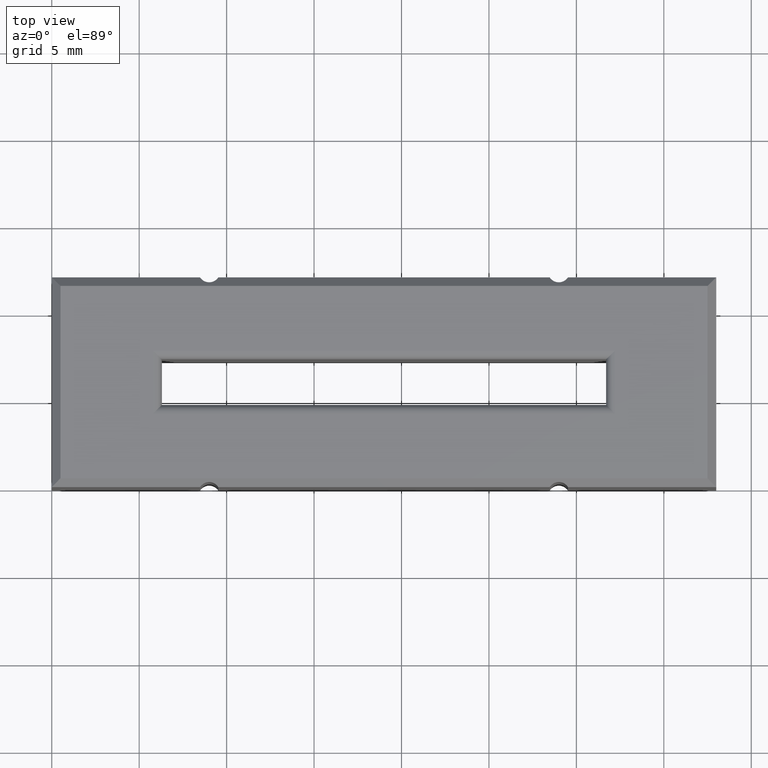
[diagram: clean part render]
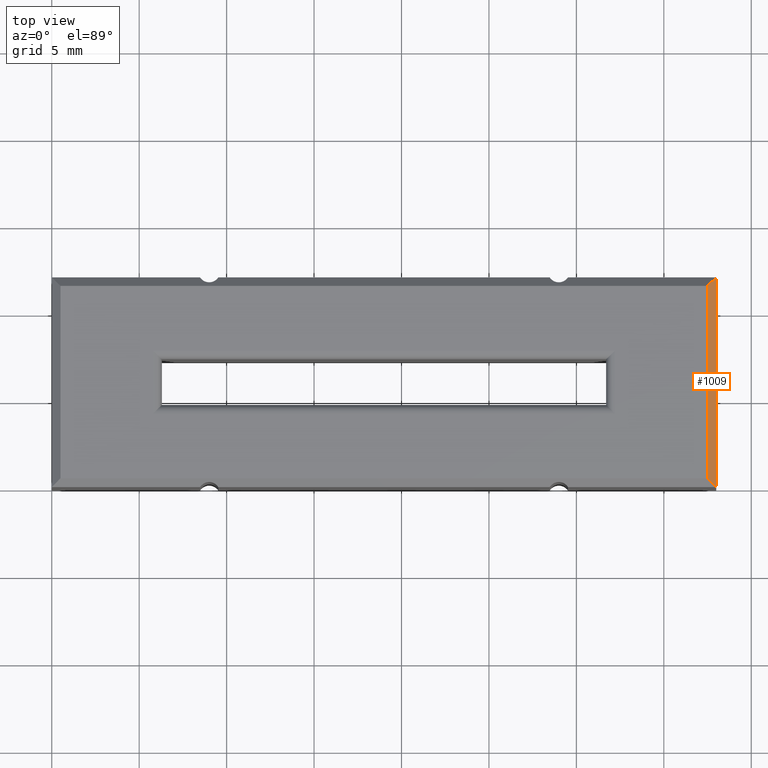
[diagram: same view with one face highlighted and labeled with its STEP entity id]
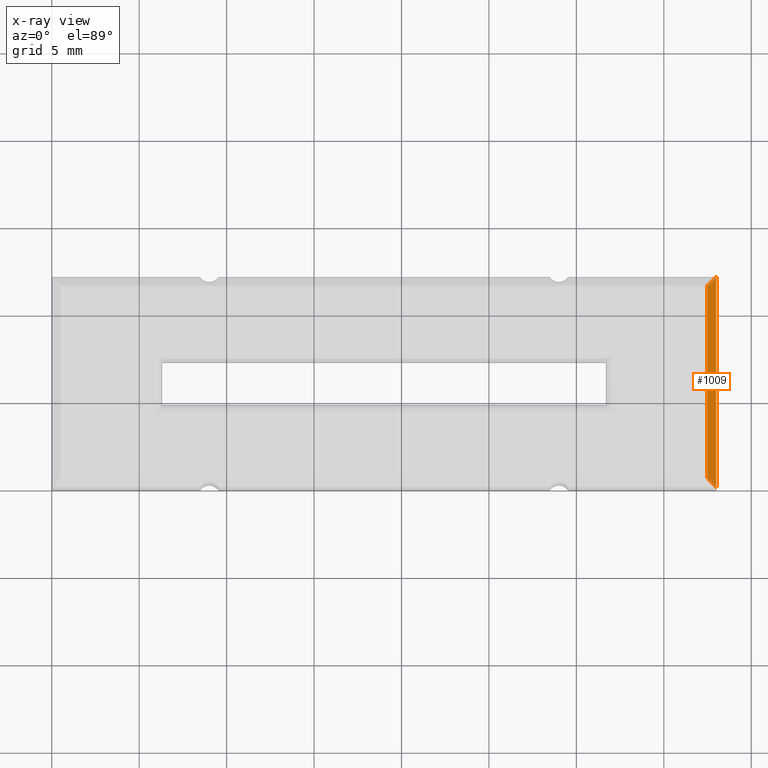
[diagram: x-ray of the same camera — body ghosted, the highlighted face saturated]
A machine part, top view. The second image highlights one B-rep face of the part: STEP entity #1009.
The next image is the same camera in x-ray: the body ghosted, the highlighted face saturated — about 0% of this face is hidden behind the body in this view.
In plain terms, the highlighted planar face has unit normal (-0.7071, 0, -0.7071).
Its self-contained STEP definition (entity closure, byte-faithful):
#148 = CARTESIAN_POINT ( 'NONE',  ( 37.50000000000000000, 0.000000000000000000, 12.69999999999999929 ) ) ;
#203 = CARTESIAN_POINT ( 'NONE',  ( 37.50000000000000000, 11.50000000000000000, 12.69999999999999929 ) ) ;
#430 = CARTESIAN_POINT ( 'NONE',  ( 25.00000000000006040, -0.9999999999999453770, 25.20000000000002771 ) ) ;
#523 = EDGE_CURVE ( 'NONE', #2996, #2002, #1898, .T. ) ;
#752 = VECTOR ( 'NONE', #2431, 1000.000000000000227 ) ;
#889 = AXIS2_PLACEMENT_3D ( 'NONE', #148, #1940, #2968 ) ;
#1009 = ADVANCED_FACE ( 'NONE', ( #3201 ), #1436, .F. ) ;
#1100 = VECTOR ( 'NONE', #1935, 1000.000000000000000 ) ;
#1210 = CARTESIAN_POINT ( 'NONE',  ( 37.50000000000000000, 0.5000000000000004441, 12.69999999999999929 ) ) ;
#1217 = DIRECTION ( 'NONE',  ( -0.5773502691896243988, -0.5773502691896243988, 0.5773502691896283956 ) ) ;
#1393 = LINE ( 'NONE', #1693, #752 ) ;
#1436 = PLANE ( 'NONE',  #889 ) ;
#1693 = CARTESIAN_POINT ( 'NONE',  ( 25.00000000000006040, 12.99999999999994493, 25.20000000000002771 ) ) ;
#1744 = CARTESIAN_POINT ( 'NONE',  ( 38.00000000000000000, 0.000000000000000000, 12.19999999999999574 ) ) ;
#1865 = VECTOR ( 'NONE', #1217, 1000.000000000000227 ) ;
#1894 = ORIENTED_EDGE ( 'NONE', *, *, #2275, .T. ) ;
#1898 = LINE ( 'NONE', #2905, #3213 ) ;
#1935 = DIRECTION ( 'NONE',  ( 0.000000000000000000, -1.000000000000000000, 0.000000000000000000 ) ) ;
#1940 = DIRECTION ( 'NONE',  ( -0.7071067811865500152, 0.000000000000000000, -0.7071067811865451302 ) ) ;
#1943 = LINE ( 'NONE', #430, #1865 ) ;
#2002 = VERTEX_POINT ( 'NONE', #203 ) ;
#2111 = VERTEX_POINT ( 'NONE', #2835 ) ;
#2275 = EDGE_CURVE ( 'NONE', #2787, #2002, #1943, .T. ) ;
#2350 = DIRECTION ( 'NONE',  ( 0.000000000000000000, 1.000000000000000000, 0.000000000000000000 ) ) ;
#2431 = DIRECTION ( 'NONE',  ( 0.5773502691896243988, -0.5773502691896243988, -0.5773502691896283956 ) ) ;
#2727 = EDGE_CURVE ( 'NONE', #2996, #2111, #1393, .T. ) ;
#2760 = CARTESIAN_POINT ( 'NONE',  ( 38.00000000000000000, 12.00000000000000000, 12.19999999999999574 ) ) ;
#2787 = VERTEX_POINT ( 'NONE', #2760 ) ;
#2816 = ORIENTED_EDGE ( 'NONE', *, *, #523, .F. ) ;
#2835 = CARTESIAN_POINT ( 'NONE',  ( 38.00000000000000000, 0.000000000000000000, 12.19999999999999574 ) ) ;
#2905 = CARTESIAN_POINT ( 'NONE',  ( 37.50000000000000000, 0.000000000000000000, 12.69999999999999929 ) ) ;
#2953 = ORIENTED_EDGE ( 'NONE', *, *, #2727, .T. ) ;
#2968 = DIRECTION ( 'NONE',  ( 0.000000000000000000, 1.000000000000000000, 0.000000000000000000 ) ) ;
#2996 = VERTEX_POINT ( 'NONE', #1210 ) ;
#3006 = EDGE_CURVE ( 'NONE', #2787, #2111, #3212, .T. ) ;
#3043 = EDGE_LOOP ( 'NONE', ( #2953, #3215, #1894, #2816 ) ) ;
#3201 = FACE_OUTER_BOUND ( 'NONE', #3043, .T. ) ;
#3212 = LINE ( 'NONE', #1744, #1100 ) ;
#3213 = VECTOR ( 'NONE', #2350, 1000.000000000000000 ) ;
#3215 = ORIENTED_EDGE ( 'NONE', *, *, #3006, .F. ) ;